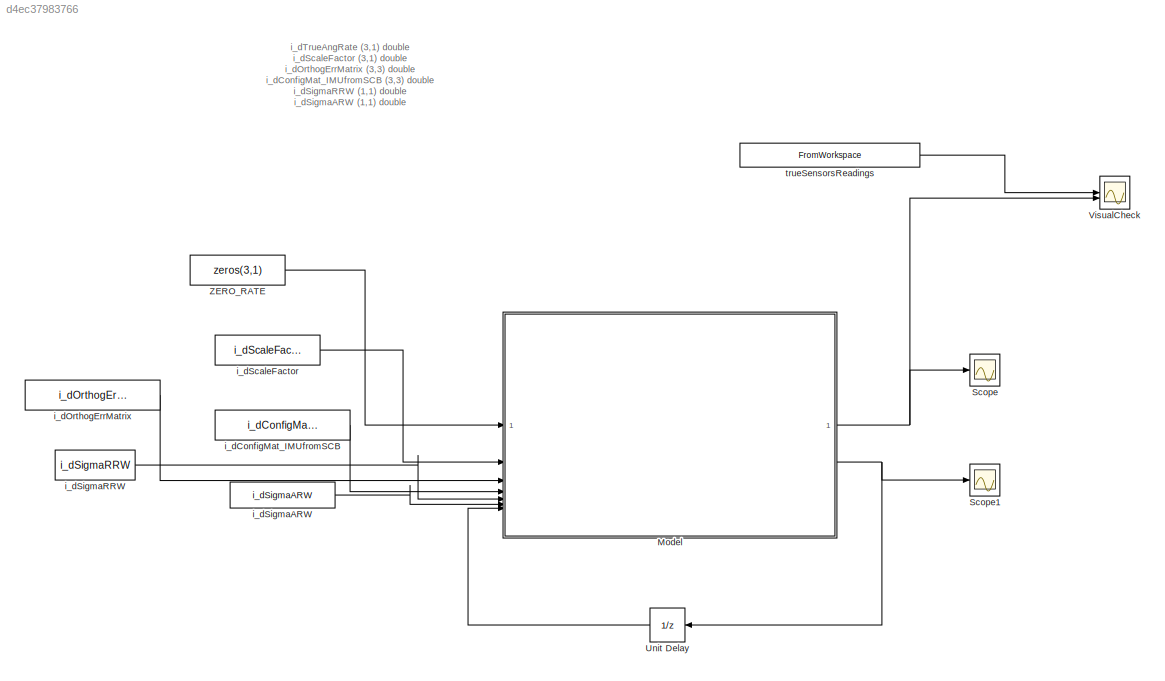
MODEL slx_d4ec37983766
KIND model
CONFIG AbsTol = auto
CONFIG EnableMultiTasking = off
CONFIG FixedStep = auto
CONFIG MaxStep = auto
CONFIG MinStep = auto
CONFIG RelTol = 1e-3
CONFIG SampleTimeConstraint = Unconstrained
CONFIG SolverName = VariableStepAuto
CONFIG StartTime = 0.0
CONFIG StopTime = 10.0
BLOCK [ModelReference] Model
  ModelNameDialog = GyrosModel.slx
  ModelReferenceVersion = 1.12
BLOCK [Scope] Scope
  Floating = off
  NumInputPorts = 1
  ScopeSpecificationString = Simulink.scopes.TimeScopeBlockCfg('CurrentConfiguration', extmgr.ConfigurationSet(extmgr.Configuration('Core','General UI',true),extmgr.Configuration('Core','Source UI',true),extmgr.Configuration('Sources','WiredSimulink',true),extmgr.Configuration('Visuals','Time Domain',true),extmgr.Configuration('Tools','Plot Navigation',true),extmgr.Configuration('Tools','Measurements',true)),'Version','2023b'...<+1ch>
BLOCK [Scope] Scope1
  Floating = off
  NumInputPorts = 1
  ScopeSpecificationString = Simulink.scopes.TimeScopeBlockCfg('CurrentConfiguration', extmgr.ConfigurationSet(extmgr.Configuration('Core','General UI',true),extmgr.Configuration('Core','Source UI',true),extmgr.Configuration('Sources','WiredSimulink',true,'DataLoggingVariableName','ScopeData1'),extmgr.Configuration('Visuals','Time Domain',true),extmgr.Configuration('Tools','Plot Navigation',true),extmgr.Configuration('Tools',...<+40ch>
BLOCK [UnitDelay] Unit Delay
  HasFrameUpgradeWarning = on
  NameLocation = top
  SampleTime = -1
BLOCK [Scope] VisualCheck
  Floating = off
  NumInputPorts = 2
  ScopeSpecificationString = Simulink.scopes.TimeScopeBlockCfg('CurrentConfiguration', extmgr.ConfigurationSet(extmgr.Configuration('Core','General UI',true),extmgr.Configuration('Core','Source UI',true),extmgr.Configuration('Sources','WiredSimulink',true,'DataLoggingVariableName','ScopeData2'),extmgr.Configuration('Visuals','Time Domain',true),extmgr.Configuration('Tools','Plot Navigation',true),extmgr.Configuration('Tools',...<+40ch>
BLOCK [Constant] ZERO_RATE
  OutDataTypeStr = double
  Value = zeros(3,1)
BLOCK [Constant] i_dConfigMat_IMUfromSCB
  Value = i_dConfigMat_IMUfromSCB
BLOCK [Constant] i_dOrthogErrMatrix
  Value = i_dOrthogErrMatrix
BLOCK [Constant] i_dScaleFactor
  Value = i_dScaleFactor
BLOCK [Constant] i_dSigmaARW
  Value = i_dSigmaARW
BLOCK [Constant] i_dSigmaRRW
  Value = i_dSigmaRRW
BLOCK [FromWorkspace] trueSensorsReadings
  OutputAfterFinalValue = Setting to zero
  SampleTime = -1
  VariableName = gyrosReadings_Timeseries
ANNOTATION (root): i_dTrueAngRate (3,1) double i_dScaleFactor (3,1) double i_dOrthogErrMatrix (3,3) double i_dConfigMat_IMUfromSCB (3,3) double i_dSigmaRRW (1,1) double i_dSigmaARW (1,1) double i_dPrevBiasValue (3,1) double
NET Model:1 -> Scope:1, VisualCheck:2
NET Model:2 -> Scope1:1, Unit Delay:1
LINE Unit Delay:1 -> Model:7
LINE ZERO_RATE:1 -> Model:1
LINE i_dConfigMat_IMUfromSCB:1 -> Model:4
LINE i_dOrthogErrMatrix:1 -> Model:3
LINE i_dScaleFactor:1 -> Model:2
LINE i_dSigmaARW:1 -> Model:6
LINE i_dSigmaRRW:1 -> Model:5
LINE trueSensorsReadings:1 -> VisualCheck:1
note: NET lines group one-source signal fan-out (src -> all destinations, sorted); 1:1 wires keep LINE
